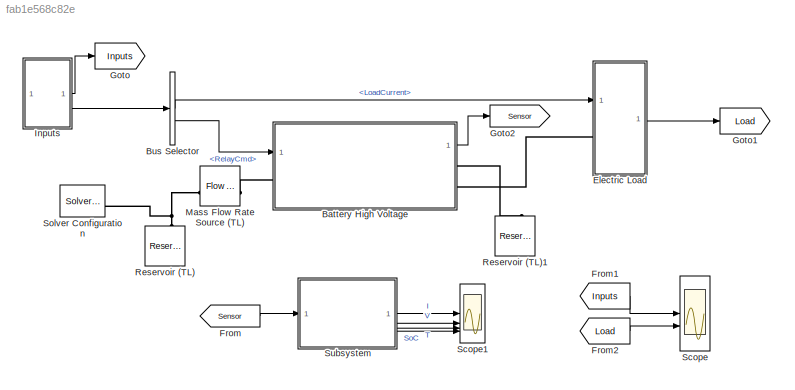
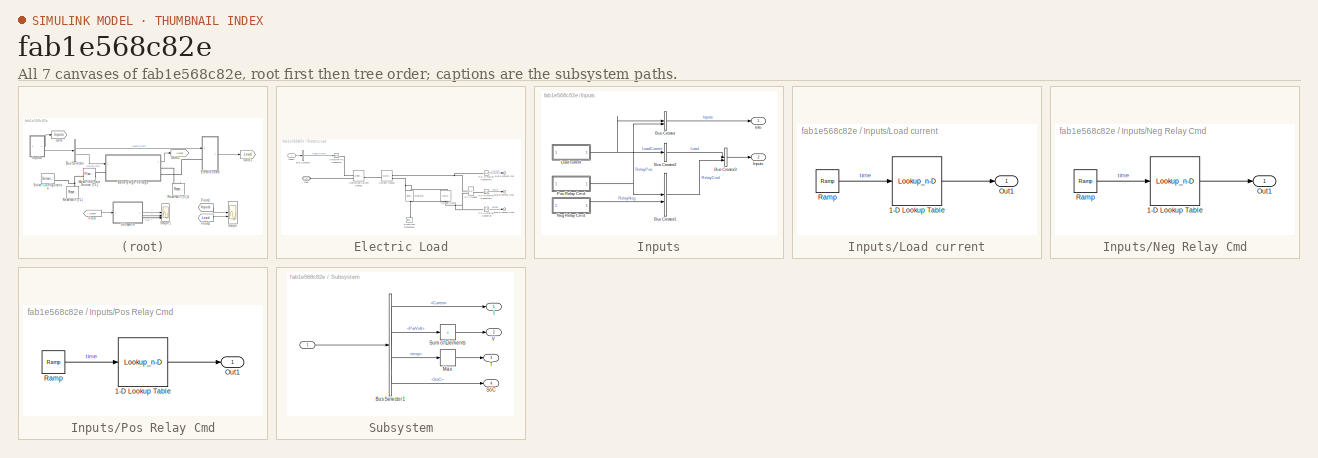
[diagram: thumbnail index - all 7 canvases of the model, root first then tree order]
MODEL slx_fab1e568c82e
KIND model
CONFIG AbsTol = auto
CONFIG EnableMultiTasking = off
CONFIG FixedStep = auto
CONFIG MaxStep = auto
CONFIG MinStep = auto
CONFIG PreLoadFcn = BatteryTestHarnessParams
CONFIG RelTol = 1e-3
CONFIG SampleTimeConstraint = Unconstrained
CONFIG SolverName = VariableStepAuto
CONFIG StartTime = 0.0
CONFIG StopTime = 1200
BLOCK [SubSystem] Battery High Voltage
  PortSchema = {"entries":[{"content":{"sides":[{"content":{"connectorIds":["In1","LConn1"]},"type":"ConnectorPlacement.EquallySpacedRectSide","uuid":"8181cb02-9fda-4117-b6cc-20d3aa3c91ff"},{"content":{"connectorIds":["Out1","RConn2","RConn1"],"side":"RIGHT"},"type":"ConnectorPlacement.EquallySpacedRectSide","uuid":"ce8e42be-3e70-4380-b57d-83f3b727ba87"},{"content":{"side":"TOP"},"type":"ConnectorPlacement.Equal...<+249ch>
  ReferencedSubsystem = BatteryLumpedThermal
BLOCK [BusSelector] Bus Selector
  OutputSignals = Load.LoadCurrent,RelayCmd
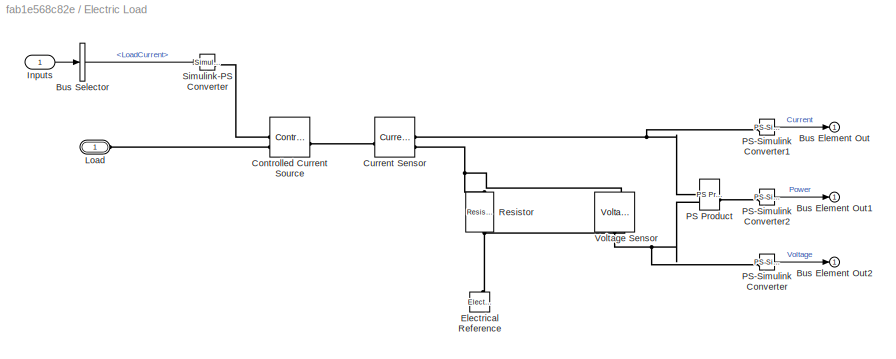
BLOCK [SubSystem] Electric Load
BLOCK [Outport] Electric Load/Bus Element Out
BLOCK [Outport] Electric Load/Bus Element Out1
BLOCK [Outport] Electric Load/Bus Element Out2
BLOCK [BusSelector] Electric Load/Bus Selector
  OutputSignals = LoadCurrent
BLOCK [Reference] Electric Load/Controlled Current Source  REF=fl_lib/Electrical/Electrical Sources/Controlled Current
Source
  SourceBlock = fl_lib/Electrical/Electrical Sources/Controlled Current\nSource
  SourceType = Controlled Current\nSource
BLOCK [Reference] Electric Load/Current Sensor  REF=fl_lib/Electrical/Electrical Sensors/Current Sensor
  SourceBlock = fl_lib/Electrical/Electrical Sensors/Current Sensor
  SourceType = Current Sensor
BLOCK [Reference] Electric Load/Electrical Reference  REF=fl_lib/Electrical/Electrical Elements/Electrical Reference
  NameLocation = right
  SourceBlock = fl_lib/Electrical/Electrical Elements/Electrical Reference
  SourceType = Electrical Reference
BLOCK [Inport] Electric Load/Inputs
BLOCK [PMIOPort] Electric Load/Load
  Side = Left
BLOCK [Reference] Electric Load/PS Product  REF=fl_lib/Physical Signals/Functions/PS Product
  SourceBlock = fl_lib/Physical Signals/Functions/PS Product
  SourceType = PS Product
BLOCK [Reference] Electric Load/PS-Simulink Converter  REF=nesl_utility/PS-Simulink
Converter
  AttributesFormatString = %<Unit>
  SourceBlock = nesl_utility/PS-Simulink\nConverter
  SourceType = PS-Simulink\nConverter
BLOCK [Reference] Electric Load/PS-Simulink Converter1  REF=nesl_utility/PS-Simulink
Converter
  AttributesFormatString = %<Unit>
  SourceBlock = nesl_utility/PS-Simulink\nConverter
  SourceType = PS-Simulink\nConverter
BLOCK [Reference] Electric Load/PS-Simulink Converter2  REF=nesl_utility/PS-Simulink
Converter
  AttributesFormatString = %<Unit>
  SourceBlock = nesl_utility/PS-Simulink\nConverter
  SourceType = PS-Simulink\nConverter
BLOCK [Reference] Electric Load/Resistor  REF=fl_lib/Electrical/Electrical Elements/Resistor
  NameLocation = left
  SourceBlock = fl_lib/Electrical/Electrical Elements/Resistor
  SourceType = Resistor
BLOCK [Reference] Electric Load/Simulink-PS Converter  REF=nesl_utility/Simulink-PS
Converter
  AttributesFormatString = %<Unit>
  SourceBlock = nesl_utility/Simulink-PS\nConverter
  SourceType = Simulink-PS\nConverter
BLOCK [Reference] Electric Load/Voltage Sensor  REF=fl_lib/Electrical/Electrical Sensors/Voltage Sensor
  NameLocation = left
  SourceBlock = fl_lib/Electrical/Electrical Sensors/Voltage Sensor
  SourceType = Voltage Sensor
BLOCK [From] From
  GotoTag = Sensor
BLOCK [From] From1
  GotoTag = Inputs
BLOCK [From] From2
  GotoTag = Load
BLOCK [Goto] Goto
  GotoTag = Inputs
BLOCK [Goto] Goto1
  GotoTag = Load
BLOCK [Goto] Goto2
  GotoTag = Sensor
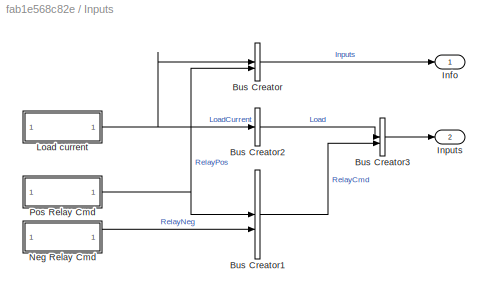
BLOCK [SubSystem] Inputs
BLOCK [BusCreator] Inputs/Bus Creator
  DisplayOption = bar
  InheritFromInputs = on
  Inputs = 2
BLOCK [BusCreator] Inputs/Bus Creator1
  DisplayOption = bar
  InheritFromInputs = on
  Inputs = 2
BLOCK [BusCreator] Inputs/Bus Creator2
  DisplayOption = bar
  InheritFromInputs = on
  Inputs = 1
BLOCK [BusCreator] Inputs/Bus Creator3
  DisplayOption = bar
  InheritFromInputs = on
  Inputs = 2
BLOCK [Outport] Inputs/Info
BLOCK [Outport] Inputs/Inputs
  Port = 2
BLOCK [SubSystem] Inputs/Load current
  NameLocation = left
BLOCK [Lookup_n-D] Inputs/Load current/1-D Lookup Table
  BreakpointsForDimension1 = [0              5            5.5              6            6.5              7            7.5              8            8.5              9            9.5             10           10.5             11           11.5             12           12.5             13           13.5             14           14.5             15           15.5             16            114          114.5            115        ...<+5123ch>
  InputPortMap = u0
  InternalRulePriority = Speed
  NumberOfTableDimensions = 1
  RndMeth = Simplest
  Table = [0            0    0.0300526     0.116454     0.253569     0.435763       0.6574     0.912847      1.19647      1.50263      1.82569      2.16003          2.5      2.83997      3.17431      3.49737      3.80353      4.08715       4.3426      4.56424      4.74643      4.88355      4.96995            5            5            5            5            5            5            5            5        ...<+4387ch>
BLOCK [Outport] Inputs/Load current/Out1
BLOCK [Reference] Inputs/Load current/Ramp  REF=simulink/Sources/Ramp
  AttributesFormatString = Slope: %<slope>\nStart time: %<start>\nInitial output: %<InitialOutput>
  SourceBlock = simulink/Sources/Ramp
  SourceType = Ramp
BLOCK [SubSystem] Inputs/Neg Relay Cmd
  NameLocation = left
BLOCK [Lookup_n-D] Inputs/Neg Relay Cmd/1-D Lookup Table
  BreakpointsForDimension1 = [0            1          1.1          1.2          1.3          1.4          1.5          1.6          1.7          1.8          1.9            2           10]
  InputPortMap = u0
  InternalRulePriority = Speed
  NumberOfTableDimensions = 1
  RndMeth = Simplest
  Table = [0           0       0.028       0.104       0.216       0.352         0.5       0.648       0.784       0.896       0.972           1           1]
BLOCK [Outport] Inputs/Neg Relay Cmd/Out1
BLOCK [Reference] Inputs/Neg Relay Cmd/Ramp  REF=simulink/Sources/Ramp
  AttributesFormatString = Slope: %<slope>\nStart time: %<start>\nInitial output: %<InitialOutput>
  SourceBlock = simulink/Sources/Ramp
  SourceType = Ramp
BLOCK [SubSystem] Inputs/Pos Relay Cmd
  NameLocation = left
BLOCK [Lookup_n-D] Inputs/Pos Relay Cmd/1-D Lookup Table
  BreakpointsForDimension1 = [0            1          1.1          1.2          1.3          1.4          1.5          1.6          1.7          1.8          1.9            2           10]
  InputPortMap = u0
  InternalRulePriority = Speed
  NumberOfTableDimensions = 1
  RndMeth = Simplest
  Table = [0           0       0.028       0.104       0.216       0.352         0.5       0.648       0.784       0.896       0.972           1           1]
BLOCK [Outport] Inputs/Pos Relay Cmd/Out1
BLOCK [Reference] Inputs/Pos Relay Cmd/Ramp  REF=simulink/Sources/Ramp
  AttributesFormatString = Slope: %<slope>\nStart time: %<start>\nInitial output: %<InitialOutput>
  SourceBlock = simulink/Sources/Ramp
  SourceType = Ramp
BLOCK [Reference] Mass Flow Rate Source (TL)  REF=fl_lib/Thermal Liquid/Sources/Flow Rate Source
(TL)
  SourceBlock = fl_lib/Thermal Liquid/Sources/Flow Rate Source\n(TL)
  SourceType = Flow Rate Source\n(TL)
BLOCK [Reference] Reservoir (TL)  REF=fl_lib/Thermal Liquid/Elements/Reservoir (TL)
  NameLocation = right
  SourceBlock = fl_lib/Thermal Liquid/Elements/Reservoir (TL)
  SourceType = Reservoir (TL)
BLOCK [Reference] Reservoir (TL)1  REF=fl_lib/Thermal Liquid/Elements/Reservoir (TL)
  NameLocation = right
  SourceBlock = fl_lib/Thermal Liquid/Elements/Reservoir (TL)
  SourceType = Reservoir (TL)
BLOCK [Scope] Scope
  Floating = off
  NumInputPorts = 2
  ScopeSpecificationString = Simulink.scopes.TimeScopeBlockCfg('CurrentConfiguration', extmgr.ConfigurationSet(extmgr.Configuration('Core','General UI',true),extmgr.Configuration('Core','Source UI',true),extmgr.Configuration('Sources','WiredSimulink',true),extmgr.Configuration('Visuals','Time Domain',true,'SerializedDisplays',{struct('MinYLimReal','-3.5','MaxYLimReal','31.5','YLabelReal','','MinYLimMag','0.00000','MaxYLimMag'...<+2017ch>
BLOCK [Scope] Scope1
  Floating = off
  NumInputPorts = 4
  ScopeSpecificationString = Simulink.scopes.TimeScopeBlockCfg('CurrentConfiguration', extmgr.ConfigurationSet(extmgr.Configuration('Core','General UI',true),extmgr.Configuration('Core','Source UI',true),extmgr.Configuration('Sources','WiredSimulink',true,'DataLoggingVariableName','ScopeData1'),extmgr.Configuration('Visuals','Time Domain',true,'SerializedDisplays',{struct('MinYLimReal','-31.5','MaxYLimReal','3.5','YLabelReal'...<+3421ch>
BLOCK [Reference] Solver Configuration  REF=nesl_utility/Solver
Configuration
  SourceBlock = nesl_utility/Solver\nConfiguration
  SourceType = Solver\nConfiguration
BLOCK [SubSystem] Subsystem
BLOCK [Inport] Subsystem/ 
BLOCK [BusSelector] Subsystem/Bus Selector1
  OutputSignals = BattSens.Current,BattSens.ParVolt,BattSens.temp,BattSens.SoC
BLOCK [Outport] Subsystem/I
BLOCK [MinMax] Subsystem/Max
  Function = max
  ZeroCross = off
BLOCK [Outport] Subsystem/SoC
  Port = 4
BLOCK [Sum] Subsystem/Sum of Elements
  IconShape = rectangular
  Inputs = +
BLOCK [Outport] Subsystem/T
  Port = 3
BLOCK [Outport] Subsystem/V
  Port = 2
LINE Battery High Voltage:1 -> Goto2:1
LINE Bus Selector:1 -> Electric Load:1
LINE Bus Selector:2 -> Battery High Voltage:1
LINE Electric Load/Bus Selector:1 -> Electric Load/Simulink-PS Converter:1
LINE Electric Load/Inputs:1 -> Electric Load/Bus Selector:1
LINE Electric Load/PS-Simulink Converter1:1 -> Electric Load/Bus Element Out:1
LINE Electric Load/PS-Simulink Converter2:1 -> Electric Load/Bus Element Out1:1
LINE Electric Load/PS-Simulink Converter:1 -> Electric Load/Bus Element Out2:1
LINE Electric Load:1 -> Goto1:1
LINE From1:1 -> Scope:1
LINE From2:1 -> Scope:2
LINE From:1 -> Subsystem:1
LINE Inputs/Bus Creator1:1 -> Inputs/Bus Creator3:2
LINE Inputs/Bus Creator2:1 -> Inputs/Bus Creator3:1
LINE Inputs/Bus Creator3:1 -> Inputs/Inputs:1
LINE Inputs/Bus Creator:1 -> Inputs/Info:1
LINE Inputs/Load current/1-D Lookup Table:1 -> Inputs/Load current/Out1:1
LINE Inputs/Load current/Ramp:1 -> Inputs/Load current/1-D Lookup Table:1
NET Inputs/Load current:1 -> Inputs/Bus Creator2:1, Inputs/Bus Creator:1
LINE Inputs/Neg Relay Cmd/1-D Lookup Table:1 -> Inputs/Neg Relay Cmd/Out1:1
LINE Inputs/Neg Relay Cmd/Ramp:1 -> Inputs/Neg Relay Cmd/1-D Lookup Table:1
LINE Inputs/Neg Relay Cmd:1 -> Inputs/Bus Creator1:2
LINE Inputs/Pos Relay Cmd/1-D Lookup Table:1 -> Inputs/Pos Relay Cmd/Out1:1
LINE Inputs/Pos Relay Cmd/Ramp:1 -> Inputs/Pos Relay Cmd/1-D Lookup Table:1
NET Inputs/Pos Relay Cmd:1 -> Inputs/Bus Creator1:1, Inputs/Bus Creator:2
LINE Inputs:1 -> Goto:1
LINE Inputs:2 -> Bus Selector:1
LINE Subsystem/ :1 -> Subsystem/Bus Selector1:1
LINE Subsystem/Bus Selector1:1 -> Subsystem/I:1
LINE Subsystem/Bus Selector1:2 -> Subsystem/Sum of Elements:1
LINE Subsystem/Bus Selector1:3 -> Subsystem/Max:1
LINE Subsystem/Bus Selector1:4 -> Subsystem/SoC:1
LINE Subsystem/Max:1 -> Subsystem/T:1
LINE Subsystem/Sum of Elements:1 -> Subsystem/V:1
LINE Subsystem:1 -> Scope1:1
LINE Subsystem:2 -> Scope1:2
LINE Subsystem:3 -> Scope1:3
LINE Subsystem:4 -> Scope1:4
PLINE Battery High Voltage:LConn1 -- Mass Flow Rate Source (TL):RConn1
PLINE Battery High Voltage:RConn1 -- Reservoir (TL)1:LConn1
PLINE Battery High Voltage:RConn2 -- Electric Load:LConn1
PLINE Electric Load/Controlled Current Source:LConn1 -- Electric Load/Current Sensor:LConn1
PLINE Electric Load/Controlled Current Source:RConn1 -- Electric Load/Simulink-PS Converter:RConn1
PLINE Electric Load/Controlled Current Source:RConn2 -- Electric Load/Load:RConn1
PNET net1: Electric Load/Current Sensor:RConn1 -- Electric Load/PS Product:LConn1 -- Electric Load/PS-Simulink Converter1:LConn1
PNET net2: Electric Load/Current Sensor:RConn2 -- Electric Load/Resistor:LConn1 -- Electric Load/Voltage Sensor:LConn1
PNET net3: Electric Load/Electrical Reference:LConn1 -- Electric Load/Resistor:RConn1 -- Electric Load/Voltage Sensor:RConn2
PNET net4: Electric Load/PS Product:LConn2 -- Electric Load/PS-Simulink Converter:LConn1 -- Electric Load/Voltage Sensor:RConn1
PLINE Electric Load/PS Product:RConn1 -- Electric Load/PS-Simulink Converter2:LConn1
PNET net5: Mass Flow Rate Source (TL):LConn1 -- Reservoir (TL):LConn1 -- Solver Configuration:RConn1
note: NET lines group one-source signal fan-out (src -> all destinations, sorted); 1:1 wires keep LINE; PNET lines group multi-terminal physical nets as a canonical sorted terminal list (undirected conserving connections); 2-terminal nets keep the pairwise PLINE form
